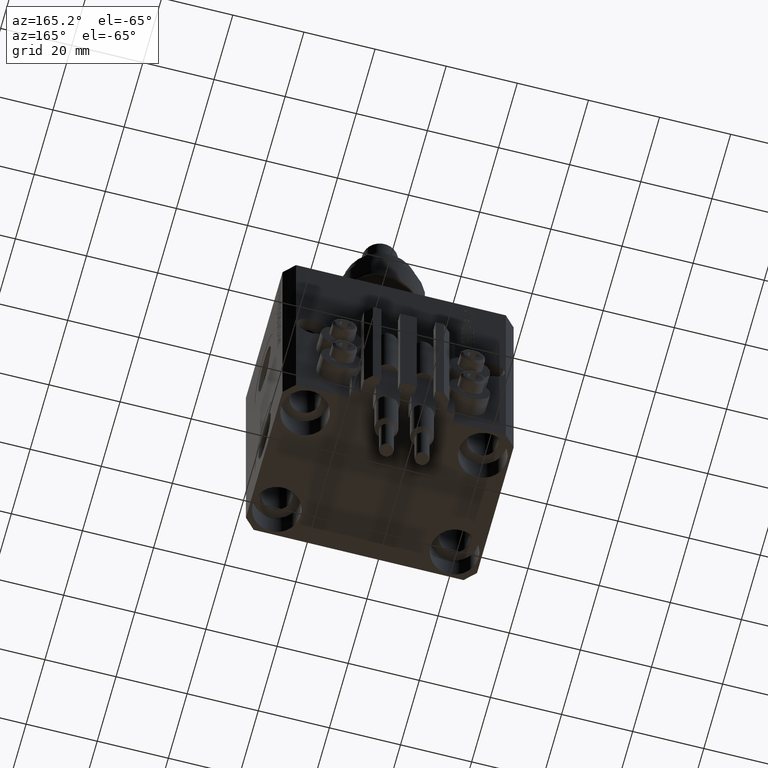
[diagram: clean part render]
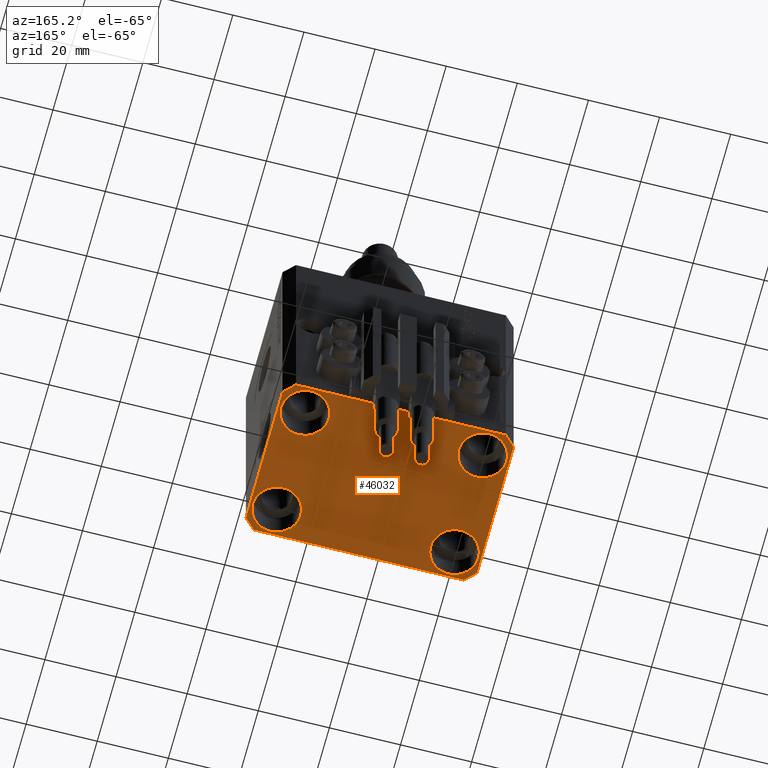
[diagram: same view with one face highlighted and labeled with its STEP entity id]
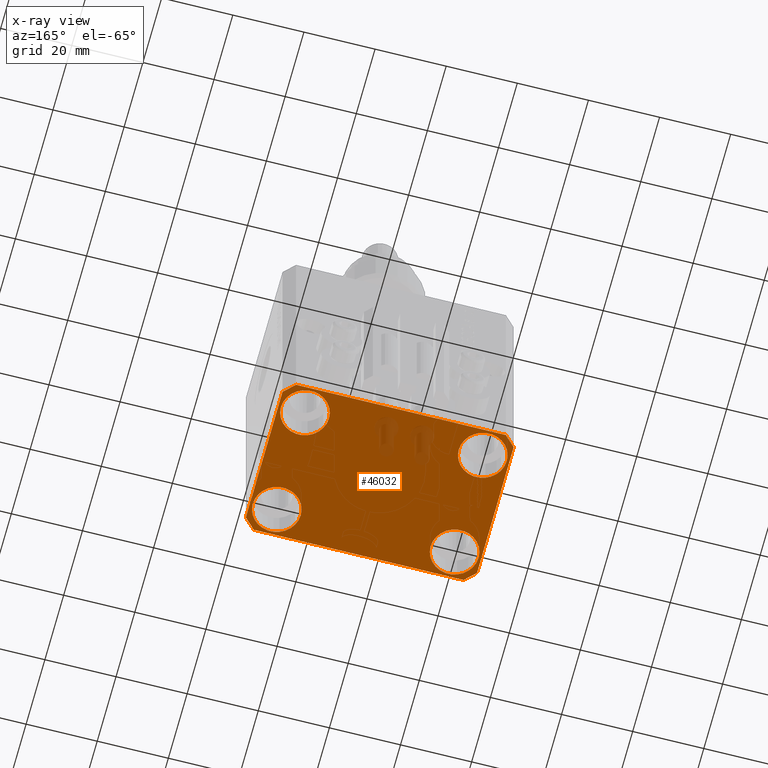
[diagram: x-ray of the same camera — body ghosted, the highlighted face saturated]
A machine part, auxiliary view. The second image highlights one B-rep face of the part: STEP entity #46032.
The next image is the same camera in x-ray: the body ghosted, the highlighted face saturated — about 5% of this face is hidden behind the body in this view.
In plain terms, the highlighted planar face has unit normal (0, 0, 1).
Its self-contained STEP definition (entity closure, byte-faithful):
#135 = CARTESIAN_POINT ( 'NONE',  ( 29.49999999999707967, 22.49999999999951328, -77.00000000000000000 ) ) ;
#348 = CARTESIAN_POINT ( 'NONE',  ( -25.00000000000000355, -15.00000000000000000, -77.00000000000000000 ) ) ;
#1023 = CARTESIAN_POINT ( 'NONE',  ( -25.00000000000000355, 15.00000000000000000, -77.00000000000000000 ) ) ;
#1325 = VERTEX_POINT ( 'NONE', #25023 ) ;
#2866 = EDGE_CURVE ( 'NONE', #49085, #47132, #19519, .T. ) ;
#3122 = EDGE_CURVE ( 'NONE', #26959, #1325, #30695, .T. ) ;
#3801 = VERTEX_POINT ( 'NONE', #19787 ) ;
#4006 = ORIENTED_EDGE ( 'NONE', *, *, #45927, .F. ) ;
#4044 = DIRECTION ( 'NONE',  ( 1.000000000000000000, 0.000000000000000000, 0.000000000000000000 ) ) ;
#4108 = ORIENTED_EDGE ( 'NONE', *, *, #21087, .T. ) ;
#4361 = DIRECTION ( 'NONE',  ( 0.7071067811865483499, 0.7071067811865466846, 0.000000000000000000 ) ) ;
#4607 = CARTESIAN_POINT ( 'NONE',  ( -32.49999999999650413, -19.49999999999949907, -77.00000000000000000 ) ) ;
#4876 = DIRECTION ( 'NONE',  ( -0.000000000000000000, -0.000000000000000000, 1.000000000000000000 ) ) ;
#5113 = ORIENTED_EDGE ( 'NONE', *, *, #18776, .T. ) ;
#5301 = VERTEX_POINT ( 'NONE', #15584 ) ;
#5666 = VERTEX_POINT ( 'NONE', #29303 ) ;
#6415 = DIRECTION ( 'NONE',  ( 0.000000000000000000, -1.000000000000000000, 0.000000000000000000 ) ) ;
#6501 = CIRCLE ( 'NONE', #32768, 6.749999999958452790 ) ;
#6545 = AXIS2_PLACEMENT_3D ( 'NONE', #348, #32212, #12674 ) ;
#6951 = CARTESIAN_POINT ( 'NONE',  ( 24.99999999999999645, 15.00000000000000888, -77.00000000000000000 ) ) ;
#7140 = LINE ( 'NONE', #11755, #33868 ) ;
#7402 = CARTESIAN_POINT ( 'NONE',  ( 0.000000000000000000, 0.000000000000000000, -77.00000000000000000 ) ) ;
#7801 = CARTESIAN_POINT ( 'NONE',  ( 32.49999999999651124, -19.49999999999949196, -77.00000000000000000 ) ) ;
#8216 = LINE ( 'NONE', #21133, #12211 ) ;
#8355 = LINE ( 'NONE', #135, #31453 ) ;
#8451 = VERTEX_POINT ( 'NONE', #43565 ) ;
#8864 = DIRECTION ( 'NONE',  ( -1.000000000000000000, -2.352167425053553784E-16, 0.000000000000000000 ) ) ;
#9012 = AXIS2_PLACEMENT_3D ( 'NONE', #22065, #9235, #27188 ) ;
#9151 = VERTEX_POINT ( 'NONE', #36177 ) ;
#9235 = DIRECTION ( 'NONE',  ( -0.000000000000000000, -0.000000000000000000, 1.000000000000000000 ) ) ;
#10866 = CIRCLE ( 'NONE', #14994, 6.750000000022533087 ) ;
#11271 = CARTESIAN_POINT ( 'NONE',  ( 32.49999999999702993, 19.49999999999945999, -77.00000000000000000 ) ) ;
#11755 = CARTESIAN_POINT ( 'NONE',  ( -29.49999999999650413, 22.49999999999949907, -77.00000000000000000 ) ) ;
#11834 = VECTOR ( 'NONE', #42898, 1000.000000000000114 ) ;
#12211 = VECTOR ( 'NONE', #4361, 1000.000000000000000 ) ;
#12270 = VECTOR ( 'NONE', #20510, 1000.000000000000000 ) ;
#12644 = ORIENTED_EDGE ( 'NONE', *, *, #50771, .F. ) ;
#12674 = DIRECTION ( 'NONE',  ( 1.000000000000000000, 0.000000000000000000, 0.000000000000000000 ) ) ;
#13087 = DIRECTION ( 'NONE',  ( 1.000000000000000000, 0.000000000000000000, 0.000000000000000000 ) ) ;
#13154 = CIRCLE ( 'NONE', #26168, 6.749999999958452790 ) ;
#13220 = CIRCLE ( 'NONE', #19803, 6.750000000022533087 ) ;
#14413 = DIRECTION ( 'NONE',  ( 1.000000000000000000, 0.000000000000000000, 0.000000000000000000 ) ) ;
#14696 = VERTEX_POINT ( 'NONE', #11271 ) ;
#14941 = ORIENTED_EDGE ( 'NONE', *, *, #20560, .T. ) ;
#14994 = AXIS2_PLACEMENT_3D ( 'NONE', #1023, #4876, #13087 ) ;
#15022 = CARTESIAN_POINT ( 'NONE',  ( 29.49999999999707967, 22.49999999999951328, -77.00000000000000000 ) ) ;
#15157 = EDGE_LOOP ( 'NONE', ( #44018, #5113 ) ) ;
#15263 = DIRECTION ( 'NONE',  ( 1.334402673828349134E-14, 1.000000000000000000, 0.000000000000000000 ) ) ;
#15527 = ORIENTED_EDGE ( 'NONE', *, *, #25832, .T. ) ;
#15584 = CARTESIAN_POINT ( 'NONE',  ( 29.49999999999650413, -22.49999999999949196, -77.00000000000000000 ) ) ;
#16283 = VERTEX_POINT ( 'NONE', #15022 ) ;
#17070 = DIRECTION ( 'NONE',  ( 1.000000000000000000, 0.000000000000000000, 0.000000000000000000 ) ) ;
#17447 = AXIS2_PLACEMENT_3D ( 'NONE', #7402, #23090, #50576 ) ;
#17510 = CARTESIAN_POINT ( 'NONE',  ( 32.49999999999651124, -19.49999999999949196, -77.00000000000000000 ) ) ;
#17995 = LINE ( 'NONE', #33659, #41358 ) ;
#18035 = CIRCLE ( 'NONE', #6545, 6.750000000041541881 ) ;
#18277 = CARTESIAN_POINT ( 'NONE',  ( 18.25000000002253842, -15.00000000000000000, -77.00000000000000000 ) ) ;
#18776 = EDGE_CURVE ( 'NONE', #18834, #36906, #39386, .T. ) ;
#18781 = VECTOR ( 'NONE', #15263, 1000.000000000000000 ) ;
#18834 = VERTEX_POINT ( 'NONE', #30530 ) ;
#19120 = VERTEX_POINT ( 'NONE', #41783 ) ;
#19207 = EDGE_LOOP ( 'NONE', ( #15527, #41628 ) ) ;
#19519 = LINE ( 'NONE', #35172, #11834 ) ;
#19787 = CARTESIAN_POINT ( 'NONE',  ( -31.75000000002253842, 15.00000000000000000, -77.00000000000000000 ) ) ;
#19790 = ORIENTED_EDGE ( 'NONE', *, *, #33316, .F. ) ;
#19803 = AXIS2_PLACEMENT_3D ( 'NONE', #47214, #28183, #4044 ) ;
#20262 = EDGE_CURVE ( 'NONE', #5301, #40642, #8216, .T. ) ;
#20510 = DIRECTION ( 'NONE',  ( -0.7071067811865352493, 0.7071067811865597852, 0.000000000000000000 ) ) ;
#20560 = EDGE_CURVE ( 'NONE', #8451, #5666, #13154, .T. ) ;
#20684 = CIRCLE ( 'NONE', #24796, 6.749999999977465137 ) ;
#20875 = AXIS2_PLACEMENT_3D ( 'NONE', #39222, #27167, #30760 ) ;
#21087 = EDGE_CURVE ( 'NONE', #5666, #8451, #6501, .T. ) ;
#21133 = CARTESIAN_POINT ( 'NONE',  ( 29.49999999999650413, -22.49999999999949196, -77.00000000000000000 ) ) ;
#22065 = CARTESIAN_POINT ( 'NONE',  ( 25.00000000000000355, -15.00000000000000000, -77.00000000000000000 ) ) ;
#22316 = FACE_BOUND ( 'NONE', #15157, .T. ) ;
#23090 = DIRECTION ( 'NONE',  ( 0.000000000000000000, 0.000000000000000000, 1.000000000000000000 ) ) ;
#23970 = DIRECTION ( 'NONE',  ( 1.000000000000000000, 0.000000000000000000, 0.000000000000000000 ) ) ;
#24219 = LINE ( 'NONE', #35013, #34853 ) ;
#24796 = AXIS2_PLACEMENT_3D ( 'NONE', #27815, #43491, #23970 ) ;
#25023 = CARTESIAN_POINT ( 'NONE',  ( -31.75000000004154899, -15.00000000000000000, -77.00000000000000000 ) ) ;
#25377 = ORIENTED_EDGE ( 'NONE', *, *, #34447, .F. ) ;
#25832 = EDGE_CURVE ( 'NONE', #3801, #19120, #13220, .T. ) ;
#26168 = AXIS2_PLACEMENT_3D ( 'NONE', #47662, #43546, #17070 ) ;
#26333 = ORIENTED_EDGE ( 'NONE', *, *, #20262, .F. ) ;
#26675 = DIRECTION ( 'NONE',  ( -0.7071067811865474617, -0.7071067811865474617, 0.000000000000000000 ) ) ;
#26742 = DIRECTION ( 'NONE',  ( -0.000000000000000000, -0.000000000000000000, 1.000000000000000000 ) ) ;
#26931 = FACE_BOUND ( 'NONE', #47837, .T. ) ;
#26935 = CARTESIAN_POINT ( 'NONE',  ( -18.24999999995845812, -15.00000000000000000, -77.00000000000000000 ) ) ;
#26959 = VERTEX_POINT ( 'NONE', #26935 ) ;
#27167 = DIRECTION ( 'NONE',  ( -0.000000000000000000, -0.000000000000000000, 1.000000000000000000 ) ) ;
#27188 = DIRECTION ( 'NONE',  ( 1.000000000000000000, 0.000000000000000000, 0.000000000000000000 ) ) ;
#27815 = CARTESIAN_POINT ( 'NONE',  ( 25.00000000000000355, -15.00000000000000000, -77.00000000000000000 ) ) ;
#28183 = DIRECTION ( 'NONE',  ( -0.000000000000000000, -0.000000000000000000, 1.000000000000000000 ) ) ;
#29060 = EDGE_LOOP ( 'NONE', ( #31765, #30417 ) ) ;
#29303 = CARTESIAN_POINT ( 'NONE',  ( 31.74999999995845101, 15.00000000000000888, -77.00000000000000000 ) ) ;
#30273 = FACE_BOUND ( 'NONE', #19207, .T. ) ;
#30417 = ORIENTED_EDGE ( 'NONE', *, *, #3122, .T. ) ;
#30530 = CARTESIAN_POINT ( 'NONE',  ( 31.74999999997746869, -15.00000000000000000, -77.00000000000000000 ) ) ;
#30686 = ORIENTED_EDGE ( 'NONE', *, *, #48872, .F. ) ;
#30695 = CIRCLE ( 'NONE', #20875, 6.750000000041541881 ) ;
#30760 = DIRECTION ( 'NONE',  ( 1.000000000000000000, 0.000000000000000000, 0.000000000000000000 ) ) ;
#31453 = VECTOR ( 'NONE', #8864, 1000.000000000000000 ) ;
#31765 = ORIENTED_EDGE ( 'NONE', *, *, #35715, .T. ) ;
#32212 = DIRECTION ( 'NONE',  ( -0.000000000000000000, -0.000000000000000000, 1.000000000000000000 ) ) ;
#32768 = AXIS2_PLACEMENT_3D ( 'NONE', #6951, #26742, #14413 ) ;
#33316 = EDGE_CURVE ( 'NONE', #14696, #16283, #43881, .T. ) ;
#33659 = CARTESIAN_POINT ( 'NONE',  ( -32.49999999999650413, 19.49999999999949907, -77.00000000000000000 ) ) ;
#33868 = VECTOR ( 'NONE', #26675, 1000.000000000000114 ) ;
#34122 = PLANE ( 'NONE',  #17447 ) ;
#34447 = EDGE_CURVE ( 'NONE', #40642, #14696, #34788, .T. ) ;
#34788 = LINE ( 'NONE', #7801, #18781 ) ;
#34853 = VECTOR ( 'NONE', #35267, 1000.000000000000000 ) ;
#34884 = FACE_BOUND ( 'NONE', #29060, .T. ) ;
#35013 = CARTESIAN_POINT ( 'NONE',  ( -29.49999999999650413, -22.49999999999949907, -77.00000000000000000 ) ) ;
#35172 = CARTESIAN_POINT ( 'NONE',  ( -32.49999999999650413, -19.49999999999949907, -77.00000000000000000 ) ) ;
#35240 = EDGE_LOOP ( 'NONE', ( #49642, #19790, #25377, #26333, #12644, #45780, #30686, #4006 ) ) ;
#35267 = DIRECTION ( 'NONE',  ( 1.000000000000000000, 1.176083712526788232E-16, 0.000000000000000000 ) ) ;
#35715 = EDGE_CURVE ( 'NONE', #1325, #26959, #18035, .T. ) ;
#36177 = CARTESIAN_POINT ( 'NONE',  ( -29.49999999999650413, 22.49999999999949907, -77.00000000000000000 ) ) ;
#36906 = VERTEX_POINT ( 'NONE', #18277 ) ;
#39222 = CARTESIAN_POINT ( 'NONE',  ( -25.00000000000000355, -15.00000000000000000, -77.00000000000000000 ) ) ;
#39386 = CIRCLE ( 'NONE', #9012, 6.749999999977465137 ) ;
#39516 = CARTESIAN_POINT ( 'NONE',  ( -29.49999999999650413, -22.49999999999949907, -77.00000000000000000 ) ) ;
#40547 = CARTESIAN_POINT ( 'NONE',  ( 32.49999999999702993, 19.49999999999945999, -77.00000000000000000 ) ) ;
#40642 = VERTEX_POINT ( 'NONE', #17510 ) ;
#41216 = EDGE_CURVE ( 'NONE', #36906, #18834, #20684, .T. ) ;
#41358 = VECTOR ( 'NONE', #6415, 1000.000000000000000 ) ;
#41628 = ORIENTED_EDGE ( 'NONE', *, *, #45686, .T. ) ;
#41783 = CARTESIAN_POINT ( 'NONE',  ( -18.24999999997747224, 15.00000000000000000, -77.00000000000000000 ) ) ;
#42573 = VERTEX_POINT ( 'NONE', #50519 ) ;
#42606 = FACE_OUTER_BOUND ( 'NONE', #35240, .T. ) ;
#42898 = DIRECTION ( 'NONE',  ( 0.7071067811865474617, -0.7071067811865474617, 0.000000000000000000 ) ) ;
#43491 = DIRECTION ( 'NONE',  ( -0.000000000000000000, -0.000000000000000000, 1.000000000000000000 ) ) ;
#43512 = EDGE_CURVE ( 'NONE', #16283, #9151, #8355, .T. ) ;
#43546 = DIRECTION ( 'NONE',  ( -0.000000000000000000, -0.000000000000000000, 1.000000000000000000 ) ) ;
#43565 = CARTESIAN_POINT ( 'NONE',  ( 18.25000000004154543, 15.00000000000000888, -77.00000000000000000 ) ) ;
#43881 = LINE ( 'NONE', #40547, #12270 ) ;
#44018 = ORIENTED_EDGE ( 'NONE', *, *, #41216, .T. ) ;
#45686 = EDGE_CURVE ( 'NONE', #19120, #3801, #10866, .T. ) ;
#45780 = ORIENTED_EDGE ( 'NONE', *, *, #2866, .F. ) ;
#45927 = EDGE_CURVE ( 'NONE', #9151, #42573, #7140, .T. ) ;
#46032 = ADVANCED_FACE ( 'NONE', ( #34884, #22316, #26931, #30273, #42606 ), #34122, .F. ) ;
#47132 = VERTEX_POINT ( 'NONE', #39516 ) ;
#47214 = CARTESIAN_POINT ( 'NONE',  ( -25.00000000000000355, 15.00000000000000000, -77.00000000000000000 ) ) ;
#47662 = CARTESIAN_POINT ( 'NONE',  ( 24.99999999999999645, 15.00000000000000888, -77.00000000000000000 ) ) ;
#47837 = EDGE_LOOP ( 'NONE', ( #14941, #4108 ) ) ;
#48872 = EDGE_CURVE ( 'NONE', #42573, #49085, #17995, .T. ) ;
#49085 = VERTEX_POINT ( 'NONE', #4607 ) ;
#49642 = ORIENTED_EDGE ( 'NONE', *, *, #43512, .F. ) ;
#50519 = CARTESIAN_POINT ( 'NONE',  ( -32.49999999999650413, 19.49999999999949907, -77.00000000000000000 ) ) ;
#50576 = DIRECTION ( 'NONE',  ( 1.000000000000000000, 0.000000000000000000, -0.000000000000000000 ) ) ;
#50771 = EDGE_CURVE ( 'NONE', #47132, #5301, #24219, .T. ) ;